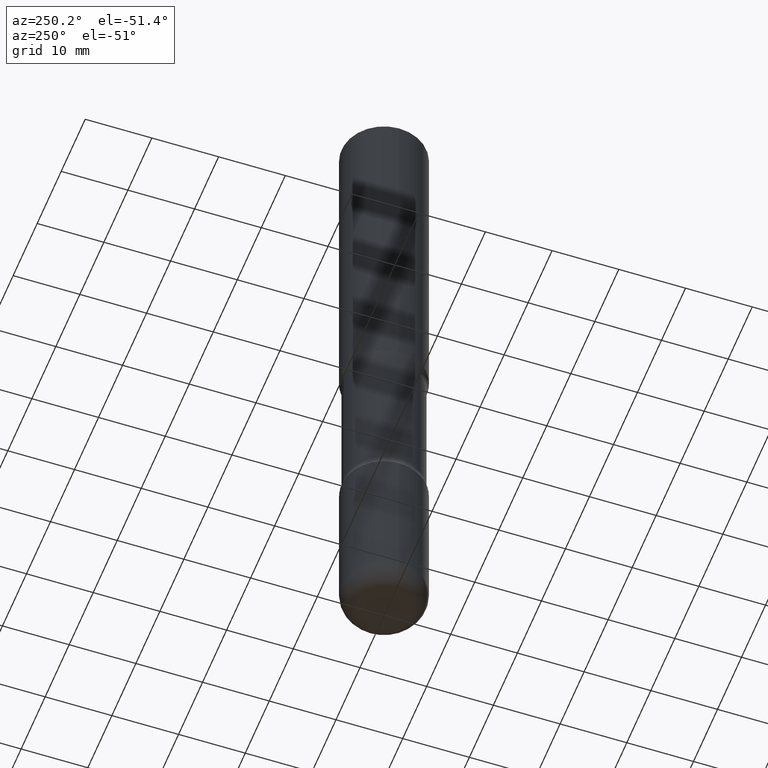
[diagram: clean part render]
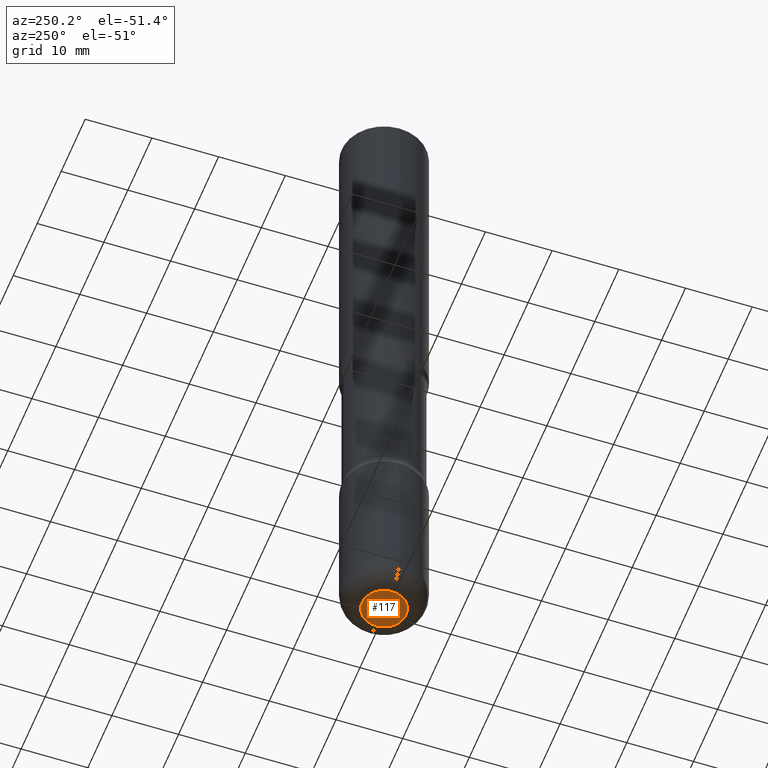
[diagram: same view with one face highlighted and labeled with its STEP entity id]
A machine part, auxiliary view. The second image highlights one B-rep face of the part: STEP entity #117.
In plain terms, the highlighted planar face has unit normal (0, -0, -1).
Its self-contained STEP definition (entity closure, byte-faithful):
#31 = CIRCLE ( 'NONE', #168, 0.1300000000000003375 ) ;
#37 = DIRECTION ( 'NONE',  ( 1.000000000000000000, -6.982962677686269077E-15, 0.000000000000000000 ) ) ;
#63 = VERTEX_POINT ( 'NONE', #64 ) ;
#64 = CARTESIAN_POINT ( 'NONE',  ( -0.1300000000000003375, -1.240640527709780404E-14, -4.000000000000000888 ) ) ;
#94 = AXIS2_PLACEMENT_3D ( 'NONE', #304, #509, #37 ) ;
#117 = ADVANCED_FACE ( 'NONE', ( #344 ), #506, .T. ) ;
#149 = CARTESIAN_POINT ( 'NONE',  ( 9.781875224740547508E-29, -1.396592535537258391E-14, -4.000000000000000888 ) ) ;
#152 = CIRCLE ( 'NONE', #94, 0.1300000000000003375 ) ;
#153 = DIRECTION ( 'NONE',  ( -2.445468806185136597E-29, 3.491481338843145583E-15, 1.000000000000000000 ) ) ;
#168 = AXIS2_PLACEMENT_3D ( 'NONE', #149, #153, #454 ) ;
#206 = DIRECTION ( 'NONE',  ( -1.000000000000000000, 6.982962677686265922E-15, -4.876176775795935793E-29 ) ) ;
#214 = EDGE_CURVE ( 'NONE', #300, #63, #152, .T. ) ;
#266 = AXIS2_PLACEMENT_3D ( 'NONE', #429, #510, #206 ) ;
#300 = VERTEX_POINT ( 'NONE', #349 ) ;
#304 = CARTESIAN_POINT ( 'NONE',  ( 9.781875224740547508E-29, -1.396592535537258391E-14, -4.000000000000000888 ) ) ;
#344 = FACE_OUTER_BOUND ( 'NONE', #501, .T. ) ;
#349 = CARTESIAN_POINT ( 'NONE',  ( 0.1300000000000003375, -1.487371050347180047E-14, -4.000000000000000888 ) ) ;
#367 = ORIENTED_EDGE ( 'NONE', *, *, #214, .F. ) ;
#394 = ORIENTED_EDGE ( 'NONE', *, *, #438, .F. ) ;
#429 = CARTESIAN_POINT ( 'NONE',  ( -1.957443286563838823E-29, -3.077729762407571596E-14, -4.000000000000000000 ) ) ;
#438 = EDGE_CURVE ( 'NONE', #63, #300, #31, .T. ) ;
#454 = DIRECTION ( 'NONE',  ( 1.000000000000000000, -6.982962677686269077E-15, 0.000000000000000000 ) ) ;
#501 = EDGE_LOOP ( 'NONE', ( #367, #394 ) ) ;
#506 = PLANE ( 'NONE',  #266 ) ;
#509 = DIRECTION ( 'NONE',  ( -2.445468806185136597E-29, 3.491481338843145583E-15, 1.000000000000000000 ) ) ;
#510 = DIRECTION ( 'NONE',  ( 2.438088387897960049E-29, -3.491481338843145188E-15, -1.000000000000000000 ) ) ;